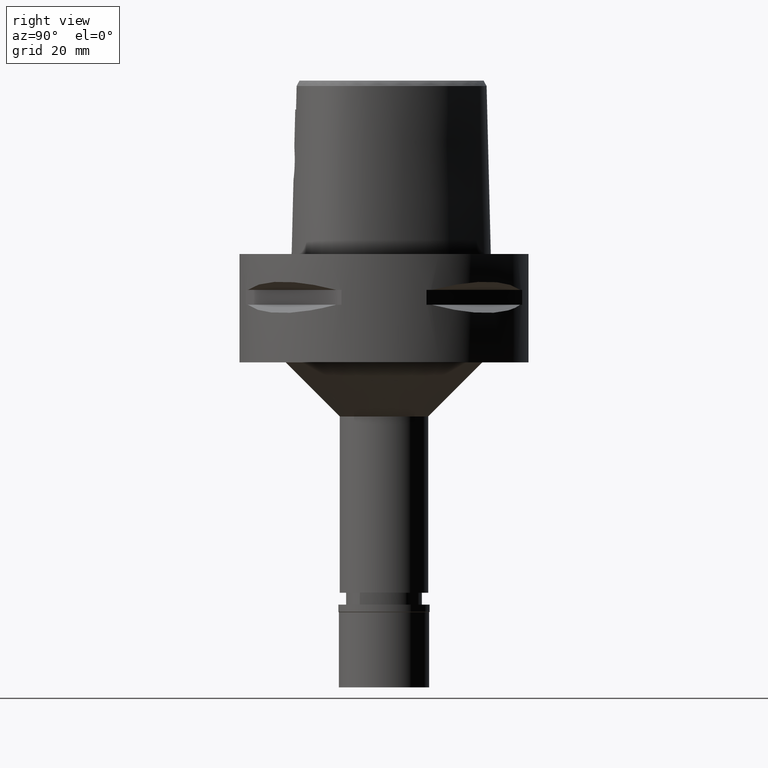
[diagram: clean part render]
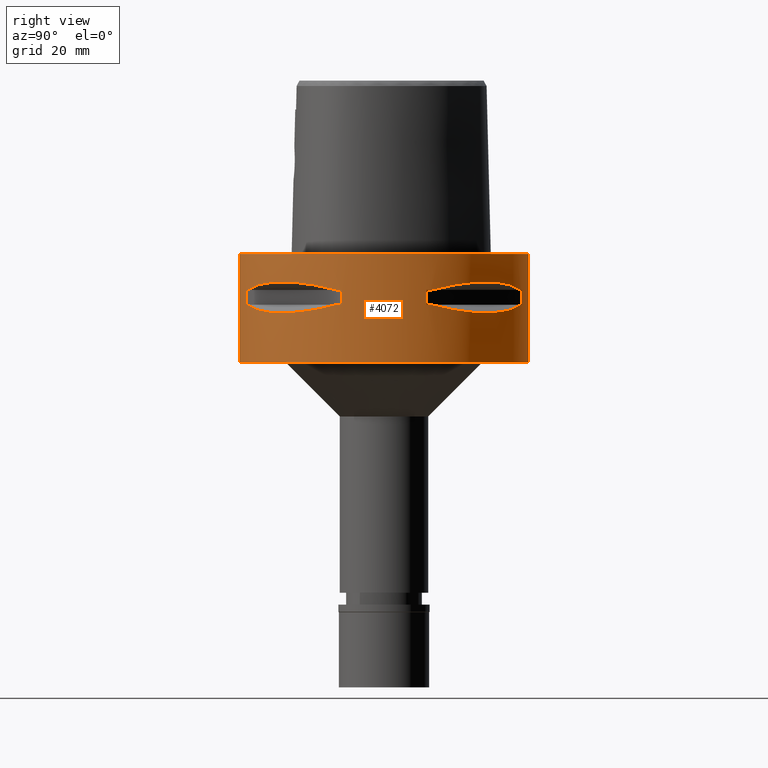
[diagram: same view with one face highlighted and labeled with its STEP entity id]
A machine part, right view. The second image highlights one B-rep face of the part: STEP entity #4072.
In plain terms, the highlighted cylindrical surface (partial cylindrical patch) has radius 40 mm, axis along (0, 0, -1).
Its self-contained STEP definition (entity closure, byte-faithful):
#14 = CARTESIAN_POINT ( 'NONE',  ( 0.0000000000000000000, 40.00000000000000000, -30.00000000000000000 ) ) ;
#59 = DIRECTION ( 'NONE',  ( 0.0000000000000000000, 0.0000000000000000000, -1.000000000000000000 ) ) ;
#66 = DIRECTION ( 'NONE',  ( 0.0000000000000000000, 0.0000000000000000000, -1.000000000000000000 ) ) ;
#79 = ORIENTED_EDGE ( 'NONE', *, *, #1469, .F. ) ;
#135 = EDGE_CURVE ( 'NONE', #1489, #4680, #4269, .T. ) ;
#138 = EDGE_CURVE ( 'NONE', #2589, #2584, #1115, .T. ) ;
#140 = CARTESIAN_POINT ( 'NONE',  ( 13.23717311056000057, -37.74622163926999718, -14.05000000000000071 ) ) ;
#152 = CARTESIAN_POINT ( 'NONE',  ( 37.74622163926999718, 13.23717311056000057, -14.05000000000000071 ) ) ;
#172 = CARTESIAN_POINT ( 'NONE',  ( 30.36058330523851367, 26.20795918968530813, -7.669882118585187314 ) ) ;
#186 = ORIENTED_EDGE ( 'NONE', *, *, #740, .F. ) ;
#194 = ORIENTED_EDGE ( 'NONE', *, *, #1026, .T. ) ;
#198 = CARTESIAN_POINT ( 'NONE',  ( 37.74622163926999718, 13.23717311056000057, -9.950000000002001244 ) ) ;
#213 = VERTEX_POINT ( 'NONE', #4713 ) ;
#214 = CARTESIAN_POINT ( 'NONE',  ( 33.75216276490046852, 21.46607685731544990, -15.77886817953061005 ) ) ;
#241 = CARTESIAN_POINT ( 'NONE',  ( 33.79139713908593023, 21.40429668490282467, -15.76966389594722528 ) ) ;
#279 = DIRECTION ( 'NONE',  ( 0.9558028356769561196, 0.2940084000702865574, 0.0000000000000000000 ) ) ;
#281 = AXIS2_PLACEMENT_3D ( 'NONE', #1913, #2355, #805 ) ;
#282 = CARTESIAN_POINT ( 'NONE',  ( 13.23717311056000057, -37.74622163926999718, -9.950000000002001244 ) ) ;
#301 = CARTESIAN_POINT ( 'NONE',  ( 21.20128033779640830, -33.91944728533381692, -15.73905907260415837 ) ) ;
#355 = ORIENTED_EDGE ( 'NONE', *, *, #3197, .T. ) ;
#369 = LINE ( 'NONE', #3812, #659 ) ;
#393 = CARTESIAN_POINT ( 'NONE',  ( 11.76033600280999991, -38.23211342708000160, -14.05000000000000071 ) ) ;
#470 = CARTESIAN_POINT ( 'NONE',  ( 0.0000000000000000000, -40.00000000000000000, 0.0000000000000000000 ) ) ;
#541 = DIRECTION ( 'NONE',  ( 0.0000000000000000000, 0.0000000000000000000, -1.000000000000000000 ) ) ;
#542 = CARTESIAN_POINT ( 'NONE',  ( 35.41596287858687475, 18.83173199168491507, -8.619939612229350345 ) ) ;
#570 = CARTESIAN_POINT ( 'NONE',  ( 38.23211342708000160, 11.76033600280999991, -14.05000000000000071 ) ) ;
#577 = VECTOR ( 'NONE', #1295, 1000.000000000000000 ) ;
#618 = DIRECTION ( 'NONE',  ( 0.0000000000000000000, 0.0000000000000000000, 1.000000000000000000 ) ) ;
#619 = CARTESIAN_POINT ( 'NONE',  ( 26.20795918968520866, 30.36058330523860960, -7.669863843575451590 ) ) ;
#631 = VERTEX_POINT ( 'NONE', #393 ) ;
#656 = CARTESIAN_POINT ( 'NONE',  ( 32.16767032371209467, 23.95303639237203797, -16.14729882780224202 ) ) ;
#659 = VECTOR ( 'NONE', #2653, 1000.000000000000000 ) ;
#662 = ORIENTED_EDGE ( 'NONE', *, *, #1313, .T. ) ;
#664 = CARTESIAN_POINT ( 'NONE',  ( 37.74622163926999718, -13.23717311056000057, -9.950000000002001244 ) ) ;
#684 = CARTESIAN_POINT ( 'NONE',  ( 20.34261333234551472, -34.44518065740425783, -15.60313948593864275 ) ) ;
#685 = CARTESIAN_POINT ( 'NONE',  ( 11.76033600280999991, 38.23211342708000160, -9.950000000000001066 ) ) ;
#712 = VERTEX_POINT ( 'NONE', #1086 ) ;
#740 = EDGE_CURVE ( 'NONE', #4105, #631, #369, .T. ) ;
#763 = CARTESIAN_POINT ( 'NONE',  ( 37.74622163926999718, -13.23717311056000057, -9.950000000002001244 ) ) ;
#773 = DIRECTION ( 'NONE',  ( 0.0000000000000000000, 0.0000000000000000000, 1.000000000000000000 ) ) ;
#776 = CARTESIAN_POINT ( 'NONE',  ( 38.23211342708000160, -11.76033600280999991, -14.05000000000000071 ) ) ;
#785 = VERTEX_POINT ( 'NONE', #1906 ) ;
#786 = CARTESIAN_POINT ( 'NONE',  ( 18.83173199168512468, -35.41596287858672554, -8.619939612229350345 ) ) ;
#805 = DIRECTION ( 'NONE',  ( 0.0000000000000000000, -1.000000000000000000, 0.0000000000000000000 ) ) ;
#809 = CARTESIAN_POINT ( 'NONE',  ( 35.41591128510518161, -18.83182902082669230, -8.619912199373718664 ) ) ;
#828 = EDGE_CURVE ( 'NONE', #3874, #5026, #4300, .T. ) ;
#864 = ORIENTED_EDGE ( 'NONE', *, *, #828, .F. ) ;
#880 = CARTESIAN_POINT ( 'NONE',  ( 30.77249687753092289, -25.62819065487347814, -16.26160051742767365 ) ) ;
#885 = ORIENTED_EDGE ( 'NONE', *, *, #4019, .T. ) ;
#923 = AXIS2_PLACEMENT_3D ( 'NONE', #3645, #4825, #4097 ) ;
#957 = CARTESIAN_POINT ( 'NONE',  ( 32.22577213862145840, 23.88355431031446230, -7.859897272588790784 ) ) ;
#972 = CARTESIAN_POINT ( 'NONE',  ( 21.44484052678270913, -33.76566745675011560, -15.77571175125575031 ) ) ;
#1006 = CARTESIAN_POINT ( 'NONE',  ( 13.23717311056000057, 37.74622163926999718, -9.950000000002001244 ) ) ;
#1024 = CARTESIAN_POINT ( 'NONE',  ( 23.60097336453497618, 32.30995221951452834, -16.06165603927751917 ) ) ;
#1026 = EDGE_CURVE ( 'NONE', #3874, #712, #4231, .T. ) ;
#1065 = CARTESIAN_POINT ( 'NONE',  ( 0.0000000000000000000, 1.292614696500000017E-14, -14.05000000000000071 ) ) ;
#1081 = AXIS2_PLACEMENT_3D ( 'NONE', #3119, #2237, #279 ) ;
#1086 = CARTESIAN_POINT ( 'NONE',  ( 37.74622163926999718, -13.23717311056000057, -14.05000000000000071 ) ) ;
#1090 = EDGE_CURVE ( 'NONE', #213, #785, #4701, .T. ) ;
#1106 = CARTESIAN_POINT ( 'NONE',  ( 33.72697758561029246, -21.50560509406250276, -15.78472370821739901 ) ) ;
#1115 = B_SPLINE_CURVE_WITH_KNOTS ( 'NONE', 3,
 ( #1944, #1593, #786, #4311, #2767, #4337, #2741, #809, #3903, #763 ),
 .UNSPECIFIED., .F., .F.,
 ( 4, 2, 2, 2, 4 ),
 ( 0.0000000000000000000, 0.2500000000000000000, 0.5000000000000000000, 0.7500000000000000000, 1.000000000000000000 ),
 .UNSPECIFIED. ) ;
#1226 = EDGE_CURVE ( 'NONE', #785, #2218, #4608, .T. ) ;
#1295 = DIRECTION ( 'NONE',  ( 0.0000000000000000000, 0.0000000000000000000, 1.000000000000000000 ) ) ;
#1313 = EDGE_CURVE ( 'NONE', #4105, #2589, #3377, .T. ) ;
#1380 = ORIENTED_EDGE ( 'NONE', *, *, #2591, .F. ) ;
#1382 = EDGE_CURVE ( 'NONE', #3855, #2864, #1493, .T. ) ;
#1390 = CARTESIAN_POINT ( 'NONE',  ( 14.69039122917563844, -37.23659447745037454, -14.43521939500837981 ) ) ;
#1391 = CARTESIAN_POINT ( 'NONE',  ( 0.0000000000000000000, 1.292614696500000017E-14, -9.950000000000001066 ) ) ;
#1416 = ORIENTED_EDGE ( 'NONE', *, *, #4773, .F. ) ;
#1417 = CARTESIAN_POINT ( 'NONE',  ( 36.35358138589326416, 16.81132763100200123, -14.94059947015123058 ) ) ;
#1469 = EDGE_CURVE ( 'NONE', #3713, #712, #4681, .T. ) ;
#1470 = CARTESIAN_POINT ( 'NONE',  ( 21.56243030661663695, 33.69065616467183588, -15.79309434609252705 ) ) ;
#1471 = DIRECTION ( 'NONE',  ( 0.0000000000000000000, 0.0000000000000000000, 1.000000000000000000 ) ) ;
#1473 = CARTESIAN_POINT ( 'NONE',  ( 0.0000000000000000000, -40.00000000000000000, 0.0000000000000000000 ) ) ;
#1479 = LINE ( 'NONE', #3063, #4458 ) ;
#1488 = CARTESIAN_POINT ( 'NONE',  ( 38.23211342708000160, -11.76033600280999991, -9.950000000000001066 ) ) ;
#1489 = VERTEX_POINT ( 'NONE', #470 ) ;
#1493 = B_SPLINE_CURVE_WITH_KNOTS ( 'NONE', 3,
 ( #4960, #3747, #1417, #2947, #3423, #3005, #4180, #4989, #241, #1868, #214, #656, #1793, #4520, #3364, #1024, #2924, #4931, #4572, #3833, #1470, #2974, #2593, #2233, #4099, #2152 ),
 .UNSPECIFIED., .F., .F.,
 ( 4, 1, 1, 1, 1, 1, 1, 2, 2, 2, 1, 1, 1, 1, 1, 1, 2, 2, 4 ),
 ( 0.0000000000000000000, 0.1249999999999938660, 0.1874999999999906741, 0.2187499999999889255, 0.2343749999999879541, 0.2421874999999872879, 0.2460937499999869549, 0.2480468749999869271, 0.2499999999999869271, 0.4999999999999968914, 0.6250000000000018874, 0.6875000000000044409, 0.7187500000000057732, 0.7343750000000064393, 0.7421875000000067724, 0.7460937500000065503, 0.7480468750000062172, 0.7500000000000058842, 1.000000000000000000 ),
 .UNSPECIFIED. ) ;
#1495 = CARTESIAN_POINT ( 'NONE',  ( 33.71529052282339478, -21.52391145898932834, -15.78742602700008568 ) ) ;
#1502 = CARTESIAN_POINT ( 'NONE',  ( 11.76033600280999991, 38.23211342708000160, -14.05000000000000071 ) ) ;
#1542 = FACE_BOUND ( 'NONE', #2382, .T. ) ;
#1592 = CARTESIAN_POINT ( 'NONE',  ( 33.03835700909839090, -22.55421454657001235, -15.93168855142863904 ) ) ;
#1593 = CARTESIAN_POINT ( 'NONE',  ( 16.10435486224581325, -36.74073341983632446, -9.189966798093660572 ) ) ;
#1600 = CARTESIAN_POINT ( 'NONE',  ( 0.0000000000000000000, -40.00000000000000000, -30.00000000000000000 ) ) ;
#1610 = VECTOR ( 'NONE', #2508, 1000.000000000000000 ) ;
#1638 = CARTESIAN_POINT ( 'NONE',  ( 29.31642813390815050, -27.25214773984377459, -16.33014064577162472 ) ) ;
#1660 = AXIS2_PLACEMENT_3D ( 'NONE', #4909, #2563, #3393 ) ;
#1665 = CARTESIAN_POINT ( 'NONE',  ( 38.23211342708000160, -11.76033600280999991, -14.05000000000000071 ) ) ;
#1741 = CARTESIAN_POINT ( 'NONE',  ( 0.0000000000000000000, 1.292614696500000017E-14, 0.0000000000000000000 ) ) ;
#1749 = DIRECTION ( 'NONE',  ( 0.9558028356769561196, -0.2940084000702865574, 0.0000000000000000000 ) ) ;
#1793 = CARTESIAN_POINT ( 'NONE',  ( 30.34851826270024944, 26.21995747455423853, -16.33009976521772799 ) ) ;
#1818 = CARTESIAN_POINT ( 'NONE',  ( 16.81132763099230587, -36.35358138589664634, -14.94059947014864775 ) ) ;
#1868 = CARTESIAN_POINT ( 'NONE',  ( 33.76566745675005166, 21.44484052678287256, -15.77571175125579828 ) ) ;
#1906 = CARTESIAN_POINT ( 'NONE',  ( 37.74622163926999718, 13.23717311056000057, -9.950000000002001244 ) ) ;
#1913 = CARTESIAN_POINT ( 'NONE',  ( 0.0000000000000000000, 1.292614696500000017E-14, 5.549999999999999822 ) ) ;
#1944 = CARTESIAN_POINT ( 'NONE',  ( 13.23717311056000057, -37.74622163926999718, -9.950000000002001244 ) ) ;
#2058 = EDGE_CURVE ( 'NONE', #4848, #2118, #4766, .T. ) ;
#2062 = CARTESIAN_POINT ( 'NONE',  ( 33.69065616467145929, -21.56243030661679327, -15.79309434609244001 ) ) ;
#2118 = VERTEX_POINT ( 'NONE', #14 ) ;
#2150 = CIRCLE ( 'NONE', #3715, 40.00000000000000000 ) ;
#2152 = CARTESIAN_POINT ( 'NONE',  ( 13.23717311056000057, 37.74622163926999718, -14.05000000000000071 ) ) ;
#2218 = VERTEX_POINT ( 'NONE', #2524 ) ;
#2233 = CARTESIAN_POINT ( 'NONE',  ( 18.89342208871625317, 35.39137327286631063, -15.39779115588368619 ) ) ;
#2237 = DIRECTION ( 'NONE',  ( 0.0000000000000000000, 0.0000000000000000000, 1.000000000000000000 ) ) ;
#2262 = CARTESIAN_POINT ( 'NONE',  ( 20.91613153241887701, -34.09685321779939926, -15.69507322892818557 ) ) ;
#2342 = AXIS2_PLACEMENT_3D ( 'NONE', #4695, #3491, #5068 ) ;
#2355 = DIRECTION ( 'NONE',  ( 0.0000000000000000000, 0.0000000000000000000, -1.000000000000000000 ) ) ;
#2376 = EDGE_LOOP ( 'NONE', ( #4780, #1380, #4495, #3412, #885, #1416, #5072, #3733 ) ) ;
#2382 = EDGE_LOOP ( 'NONE', ( #4260, #864, #194, #79, #355, #186, #662, #2545 ) ) ;
#2423 = AXIS2_PLACEMENT_3D ( 'NONE', #4067, #541, #1749 ) ;
#2450 = CARTESIAN_POINT ( 'NONE',  ( 36.72682052669194519, -16.14402792113480345, -14.82054974553614635 ) ) ;
#2466 = EDGE_CURVE ( 'NONE', #4680, #2118, #2150, .T. ) ;
#2483 = CARTESIAN_POINT ( 'NONE',  ( 0.0000000000000000000, 40.00000000000000000, 0.0000000000000000000 ) ) ;
#2494 = CIRCLE ( 'NONE', #3493, 40.00000000000000000 ) ;
#2508 = DIRECTION ( 'NONE',  ( 0.0000000000000000000, 0.0000000000000000000, -1.000000000000000000 ) ) ;
#2511 = VERTEX_POINT ( 'NONE', #1502 ) ;
#2524 = CARTESIAN_POINT ( 'NONE',  ( 13.23717311056000057, 37.74622163926999718, -9.950000000002001244 ) ) ;
#2539 = CARTESIAN_POINT ( 'NONE',  ( 21.46607685731536819, -33.75216276490051825, -15.77886817953059051 ) ) ;
#2545 = ORIENTED_EDGE ( 'NONE', *, *, #138, .T. ) ;
#2547 = CARTESIAN_POINT ( 'NONE',  ( 36.74073341983645236, 16.10435486224558943, -9.189966798093662348 ) ) ;
#2563 = DIRECTION ( 'NONE',  ( 0.0000000000000000000, 0.0000000000000000000, 1.000000000000000000 ) ) ;
#2569 = CIRCLE ( 'NONE', #5054, 39.99999999999997868 ) ;
#2584 = VERTEX_POINT ( 'NONE', #664 ) ;
#2589 = VERTEX_POINT ( 'NONE', #282 ) ;
#2591 = EDGE_CURVE ( 'NONE', #2511, #2979, #1479, .T. ) ;
#2593 = CARTESIAN_POINT ( 'NONE',  ( 21.50560509406274434, 33.72697758561020720, -15.78472370821746118 ) ) ;
#2645 = DIRECTION ( 'NONE',  ( 0.0000000000000000000, 0.0000000000000000000, -1.000000000000000000 ) ) ;
#2653 = DIRECTION ( 'NONE',  ( 0.0000000000000000000, 0.0000000000000000000, -1.000000000000000000 ) ) ;
#2673 = CARTESIAN_POINT ( 'NONE',  ( 23.95303639238279914, -32.16767032370825063, -16.14729882780506287 ) ) ;
#2741 = CARTESIAN_POINT ( 'NONE',  ( 32.22570670466003406, -23.88364259926279232, -7.859869859733158215 ) ) ;
#2767 = CARTESIAN_POINT ( 'NONE',  ( 26.20795918968520155, -30.36058330523858828, -7.669882118585187314 ) ) ;
#2812 = CARTESIAN_POINT ( 'NONE',  ( 26.21995747456629644, -30.34851826269509800, -16.33009976522055240 ) ) ;
#2842 = DIRECTION ( 'NONE',  ( 0.2940084000702865574, 0.9558028356769561196, 0.0000000000000000000 ) ) ;
#2864 = VERTEX_POINT ( 'NONE', #3057 ) ;
#2886 = CARTESIAN_POINT ( 'NONE',  ( 0.0000000000000000000, 1.292614696500000017E-14, -14.05000000000000071 ) ) ;
#2905 = EDGE_CURVE ( 'NONE', #2584, #5026, #2569, .T. ) ;
#2924 = CARTESIAN_POINT ( 'NONE',  ( 22.55421454656803704, 33.03835700910301654, -15.93168855142971374 ) ) ;
#2947 = CARTESIAN_POINT ( 'NONE',  ( 35.11589783530617126, 19.18269457493275354, -15.40342377741110091 ) ) ;
#2974 = CARTESIAN_POINT ( 'NONE',  ( 21.52391145898924663, 33.71529052282357952, -15.78742602700012831 ) ) ;
#2979 = VERTEX_POINT ( 'NONE', #685 ) ;
#2995 = AXIS2_PLACEMENT_3D ( 'NONE', #2886, #4052, #2842 ) ;
#3005 = CARTESIAN_POINT ( 'NONE',  ( 34.09685321779860345, 20.91613153242115075, -15.69507322892878953 ) ) ;
#3029 = DIRECTION ( 'NONE',  ( 0.9436555409818374596, -0.3309293277639132058, 0.0000000000000000000 ) ) ;
#3057 = CARTESIAN_POINT ( 'NONE',  ( 13.23717311056000057, 37.74622163926999718, -14.05000000000000071 ) ) ;
#3063 = CARTESIAN_POINT ( 'NONE',  ( 11.76033600280999991, 38.23211342708000160, -14.05000000000000071 ) ) ;
#3086 = CIRCLE ( 'NONE', #3407, 39.99999999999997868 ) ;
#3088 = ORIENTED_EDGE ( 'NONE', *, *, #135, .T. ) ;
#3104 = CYLINDRICAL_SURFACE ( 'NONE', #281, 40.00000000000000000 ) ;
#3119 = CARTESIAN_POINT ( 'NONE',  ( 0.0000000000000000000, 1.292614696500000017E-14, -9.950000000000001066 ) ) ;
#3197 = EDGE_CURVE ( 'NONE', #3713, #631, #4872, .T. ) ;
#3239 = EDGE_LOOP ( 'NONE', ( #3307, #3088, #5098, #3568 ) ) ;
#3306 = VECTOR ( 'NONE', #66, 1000.000000000000000 ) ;
#3307 = ORIENTED_EDGE ( 'NONE', *, *, #3570, .T. ) ;
#3364 = CARTESIAN_POINT ( 'NONE',  ( 25.62819065486898396, 30.77249687754148866, -16.26160051743016055 ) ) ;
#3377 = CIRCLE ( 'NONE', #1660, 39.99999999999999289 ) ;
#3393 = DIRECTION ( 'NONE',  ( 0.2940084000702865574, -0.9558028356769561196, 0.0000000000000000000 ) ) ;
#3401 = CARTESIAN_POINT ( 'NONE',  ( 0.0000000000000000000, 1.292614696500000017E-14, -30.00000000000000000 ) ) ;
#3407 = AXIS2_PLACEMENT_3D ( 'NONE', #1065, #5003, #3818 ) ;
#3412 = ORIENTED_EDGE ( 'NONE', *, *, #1382, .F. ) ;
#3423 = CARTESIAN_POINT ( 'NONE',  ( 34.44518065740276569, 20.34261333234974245, -15.60313948593977074 ) ) ;
#3448 = CARTESIAN_POINT ( 'NONE',  ( 21.34345216682037716, -33.82993376593525170, -15.76055673748744468 ) ) ;
#3491 = DIRECTION ( 'NONE',  ( 0.0000000000000000000, 0.0000000000000000000, 1.000000000000000000 ) ) ;
#3493 = AXIS2_PLACEMENT_3D ( 'NONE', #1741, #59, #3601 ) ;
#3531 = CARTESIAN_POINT ( 'NONE',  ( 0.0000000000000000000, 40.00000000000000000, 0.0000000000000000000 ) ) ;
#3568 = ORIENTED_EDGE ( 'NONE', *, *, #2058, .F. ) ;
#3570 = EDGE_CURVE ( 'NONE', #4848, #1489, #2494, .T. ) ;
#3601 = DIRECTION ( 'NONE',  ( 0.0000000000000000000, 1.000000000000000000, 0.0000000000000000000 ) ) ;
#3645 = CARTESIAN_POINT ( 'NONE',  ( 0.0000000000000000000, 1.292614696500000017E-14, -14.05000000000000071 ) ) ;
#3660 = CARTESIAN_POINT ( 'NONE',  ( 16.10442380453151401, 36.74070924255632775, -9.189948522856569824 ) ) ;
#3710 = CARTESIAN_POINT ( 'NONE',  ( 38.23211342708000160, 11.76033600280999991, -9.950000000000001066 ) ) ;
#3713 = VERTEX_POINT ( 'NONE', #140 ) ;
#3715 = AXIS2_PLACEMENT_3D ( 'NONE', #3401, #618, #4602 ) ;
#3719 = CARTESIAN_POINT ( 'NONE',  ( 13.23717311056000057, -37.74622163926999718, -14.05000000000000071 ) ) ;
#3733 = ORIENTED_EDGE ( 'NONE', *, *, #1226, .T. ) ;
#3747 = CARTESIAN_POINT ( 'NONE',  ( 37.23659447744844897, 14.69039122918117357, -14.43521939500984885 ) ) ;
#3812 = CARTESIAN_POINT ( 'NONE',  ( 11.76033600280999991, -38.23211342708000160, -9.950000000000001066 ) ) ;
#3816 = CIRCLE ( 'NONE', #2342, 39.99999999999997868 ) ;
#3818 = DIRECTION ( 'NONE',  ( 0.9436555409818374596, 0.3309293277639132058, 0.0000000000000000000 ) ) ;
#3833 = CARTESIAN_POINT ( 'NONE',  ( 21.62017158009700069, 33.65365962422837498, -15.80156334789098160 ) ) ;
#3855 = VERTEX_POINT ( 'NONE', #152 ) ;
#3857 = CARTESIAN_POINT ( 'NONE',  ( 33.56701934068144766, -21.75464223249341345, -15.82109001420603533 ) ) ;
#3874 = VERTEX_POINT ( 'NONE', #1665 ) ;
#3903 = CARTESIAN_POINT ( 'NONE',  ( 36.74070924255633486, -16.10442380453150690, -9.189948522856573376 ) ) ;
#3948 = FACE_BOUND ( 'NONE', #2376, .T. ) ;
#3953 = CARTESIAN_POINT ( 'NONE',  ( 35.39137327285502010, -18.89342208874845142, -15.39779115589221625 ) ) ;
#4019 = EDGE_CURVE ( 'NONE', #3855, #4700, #3086, .T. ) ;
#4026 = CARTESIAN_POINT ( 'NONE',  ( 33.65365962422774260, -21.62017158009728135, -15.80156334789082528 ) ) ;
#4052 = DIRECTION ( 'NONE',  ( 0.0000000000000000000, 0.0000000000000000000, -1.000000000000000000 ) ) ;
#4067 = CARTESIAN_POINT ( 'NONE',  ( 0.0000000000000000000, 1.292614696500000017E-14, -14.05000000000000071 ) ) ;
#4072 = ADVANCED_FACE ( 'NONE', ( #4645, #1542, #3948 ), #3104, .T. ) ;
#4088 = CARTESIAN_POINT ( 'NONE',  ( 23.88364259926272481, 32.22570670466008380, -7.859869859733156439 ) ) ;
#4095 = EDGE_CURVE ( 'NONE', #2218, #2979, #3816, .T. ) ;
#4097 = DIRECTION ( 'NONE',  ( 0.3309293277639132058, -0.9436555409818374596, 0.0000000000000000000 ) ) ;
#4099 = CARTESIAN_POINT ( 'NONE',  ( 16.14402792110260521, 36.72682052670324993, -14.82054974552761095 ) ) ;
#4105 = VERTEX_POINT ( 'NONE', #4280 ) ;
#4109 = CARTESIAN_POINT ( 'NONE',  ( 18.83182902082666743, 35.41591128510520292, -8.619912199373716888 ) ) ;
#4180 = CARTESIAN_POINT ( 'NONE',  ( 33.91944728533341191, 21.20128033779756294, -15.73905907260447101 ) ) ;
#4208 = CARTESIAN_POINT ( 'NONE',  ( 19.18269457492549179, -35.11589783530871500, -15.40342377740917001 ) ) ;
#4231 = CIRCLE ( 'NONE', #2423, 39.99999999999999289 ) ;
#4260 = ORIENTED_EDGE ( 'NONE', *, *, #2905, .T. ) ;
#4269 = LINE ( 'NONE', #1473, #5022 ) ;
#4280 = CARTESIAN_POINT ( 'NONE',  ( 11.76033600280999991, -38.23211342708000160, -9.950000000000001066 ) ) ;
#4300 = LINE ( 'NONE', #776, #577 ) ;
#4311 = CARTESIAN_POINT ( 'NONE',  ( 23.88355431031452625, -32.22577213862137313, -7.859897272588789008 ) ) ;
#4336 = CARTESIAN_POINT ( 'NONE',  ( 37.74622163926999718, -13.23717311056000057, -14.05000000000000071 ) ) ;
#4337 = CARTESIAN_POINT ( 'NONE',  ( 30.36058330523851012, -26.20795918968527261, -7.669863843575452478 ) ) ;
#4458 = VECTOR ( 'NONE', #773, 1000.000000000000000 ) ;
#4495 = ORIENTED_EDGE ( 'NONE', *, *, #4767, .T. ) ;
#4497 = CARTESIAN_POINT ( 'NONE',  ( 21.40429668490248005, -33.79139713908606524, -15.76966389594713647 ) ) ;
#4520 = CARTESIAN_POINT ( 'NONE',  ( 27.25214773984120598, 29.31642813391417590, -16.33014064577303515 ) ) ;
#4572 = CARTESIAN_POINT ( 'NONE',  ( 21.75464223249287699, 33.56701934068274795, -15.82109001420633732 ) ) ;
#4602 = DIRECTION ( 'NONE',  ( 0.0000000000000000000, -1.000000000000000000, 0.0000000000000000000 ) ) ;
#4608 = B_SPLINE_CURVE_WITH_KNOTS ( 'NONE', 3,
 ( #198, #2547, #542, #957, #172, #619, #4088, #4109, #3660, #1006 ),
 .UNSPECIFIED., .F., .F.,
 ( 4, 2, 2, 2, 4 ),
 ( 0.0000000000000000000, 0.2499999999999997780, 0.4999999999999995559, 0.7499999999999997780, 1.000000000000000000 ),
 .UNSPECIFIED. ) ;
#4625 = CARTESIAN_POINT ( 'NONE',  ( 32.30995221950663421, -23.60097336453835837, -16.06165603927566821 ) ) ;
#4645 = FACE_OUTER_BOUND ( 'NONE', #3239, .T. ) ;
#4680 = VERTEX_POINT ( 'NONE', #1600 ) ;
#4681 = B_SPLINE_CURVE_WITH_KNOTS ( 'NONE', 3,
 ( #3719, #1390, #1818, #4208, #684, #2262, #301, #3448, #4497, #972, #2539, #2673, #2812, #1638, #880, #4625, #1592, #4796, #3857, #4026, #2062, #1495, #1106, #3953, #2450, #4336 ),
 .UNSPECIFIED., .F., .F.,
 ( 4, 1, 1, 1, 1, 1, 1, 2, 2, 2, 1, 1, 1, 1, 1, 1, 2, 2, 4 ),
 ( 0.0000000000000000000, 0.1250000000000018319, 0.1875000000000027478, 0.2187500000000032196, 0.2343750000000035805, 0.2421875000000038025, 0.2460937500000040523, 0.2480468750000043576, 0.2500000000000046629, 0.5000000000000000000, 0.6249999999999975575, 0.6874999999999964473, 0.7187499999999961142, 0.7343749999999960032, 0.7421874999999960032, 0.7460937499999957812, 0.7480468749999958922, 0.7499999999999958922, 1.000000000000000000 ),
 .UNSPECIFIED. ) ;
#4695 = CARTESIAN_POINT ( 'NONE',  ( 0.0000000000000000000, 1.292614696500000017E-14, -9.950000000000001066 ) ) ;
#4700 = VERTEX_POINT ( 'NONE', #570 ) ;
#4701 = CIRCLE ( 'NONE', #1081, 39.99999999999999289 ) ;
#4713 = CARTESIAN_POINT ( 'NONE',  ( 38.23211342708000160, 11.76033600280999991, -9.950000000000001066 ) ) ;
#4766 = LINE ( 'NONE', #3531, #3306 ) ;
#4767 = EDGE_CURVE ( 'NONE', #2511, #2864, #4809, .T. ) ;
#4773 = EDGE_CURVE ( 'NONE', #213, #4700, #4904, .T. ) ;
#4780 = ORIENTED_EDGE ( 'NONE', *, *, #4095, .T. ) ;
#4796 = CARTESIAN_POINT ( 'NONE',  ( 33.39247868354526361, -22.02254759438564591, -15.85920599531236164 ) ) ;
#4809 = CIRCLE ( 'NONE', #2995, 39.99999999999999289 ) ;
#4825 = DIRECTION ( 'NONE',  ( 0.0000000000000000000, 0.0000000000000000000, -1.000000000000000000 ) ) ;
#4848 = VERTEX_POINT ( 'NONE', #2483 ) ;
#4872 = CIRCLE ( 'NONE', #923, 39.99999999999997868 ) ;
#4904 = LINE ( 'NONE', #3710, #1610 ) ;
#4909 = CARTESIAN_POINT ( 'NONE',  ( 0.0000000000000000000, 1.292614696500000017E-14, -9.950000000000001066 ) ) ;
#4931 = CARTESIAN_POINT ( 'NONE',  ( 22.02254759438460141, 33.39247868354773630, -15.85920599531294783 ) ) ;
#4960 = CARTESIAN_POINT ( 'NONE',  ( 37.74622163926999718, 13.23717311056000057, -14.05000000000000071 ) ) ;
#4989 = CARTESIAN_POINT ( 'NONE',  ( 33.82993376593505275, 21.34345216682098112, -15.76055673748761166 ) ) ;
#5003 = DIRECTION ( 'NONE',  ( 0.0000000000000000000, 0.0000000000000000000, -1.000000000000000000 ) ) ;
#5022 = VECTOR ( 'NONE', #2645, 1000.000000000000000 ) ;
#5026 = VERTEX_POINT ( 'NONE', #1488 ) ;
#5054 = AXIS2_PLACEMENT_3D ( 'NONE', #1391, #1471, #3029 ) ;
#5068 = DIRECTION ( 'NONE',  ( 0.3309293277639132058, 0.9436555409818374596, 0.0000000000000000000 ) ) ;
#5072 = ORIENTED_EDGE ( 'NONE', *, *, #1090, .T. ) ;
#5098 = ORIENTED_EDGE ( 'NONE', *, *, #2466, .T. ) ;